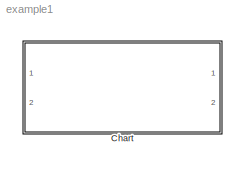
MODEL example1
KIND model
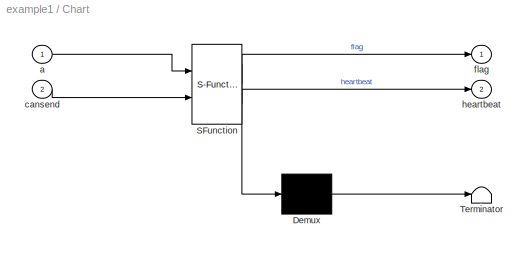
BLOCK [SubSystem] Chart
  ErrorFcn = Stateflow.Translate.translate
  PermitHierarchicalResolution = ExplicitOnly
  Ports = [2, 2]
  RequestExecContextInheritance = off
  SFBlockType = Chart
  SID = 1
  TreatAsAtomicUnit = on
BLOCK [Demux] Chart/ Demux 
  Outputs = 1
  Ports = [1, 1]
  SID = 1::94
BLOCK [S-Function] Chart/ SFunction 
  EnableBusSupport = off
  FunctionName = sf_sfun
  PortCounts = [2 3]
  Ports = [2, 3]
  SFcnIsStateOwnerBlock = off
  SFunctionDeploymentMode = off
  SID = 1::93
  Tag = Stateflow S-Function example1 3
BLOCK [Terminator] Chart/ Terminator 
  SID = 1::95
BLOCK [Inport] Chart/a
  IconDisplay = Port number
  SID = 1::81
BLOCK [Inport] Chart/cansend
  IconDisplay = Port number
  Port = 2
  SID = 1::89
BLOCK [Outport] Chart/flag
  IconDisplay = Port number
  SID = 1::88
BLOCK [Outport] Chart/heartbeat
  IconDisplay = Port number
  Port = 2
  SID = 1::92
LINE Chart/ Demux :1 -> Chart/ Terminator :1
LINE Chart/ SFunction :1 -> Chart/ Demux :1
LINE Chart/ SFunction :2 -> Chart/flag:1
LINE Chart/ SFunction :3 -> Chart/heartbeat:1
LINE Chart/a:1 -> Chart/ SFunction :1
LINE Chart/cansend:1 -> Chart/ SFunction :2
CHART Chart states=3 transitions=5
  STATE_LABEL 'pushing\\nduring:flag=0'
  STATE_LABEL 'idle\\nentry:heartbeat=0;\\nduring:flag=1;'
  STATE_LABEL '[cansend]/{i=i-1}'
